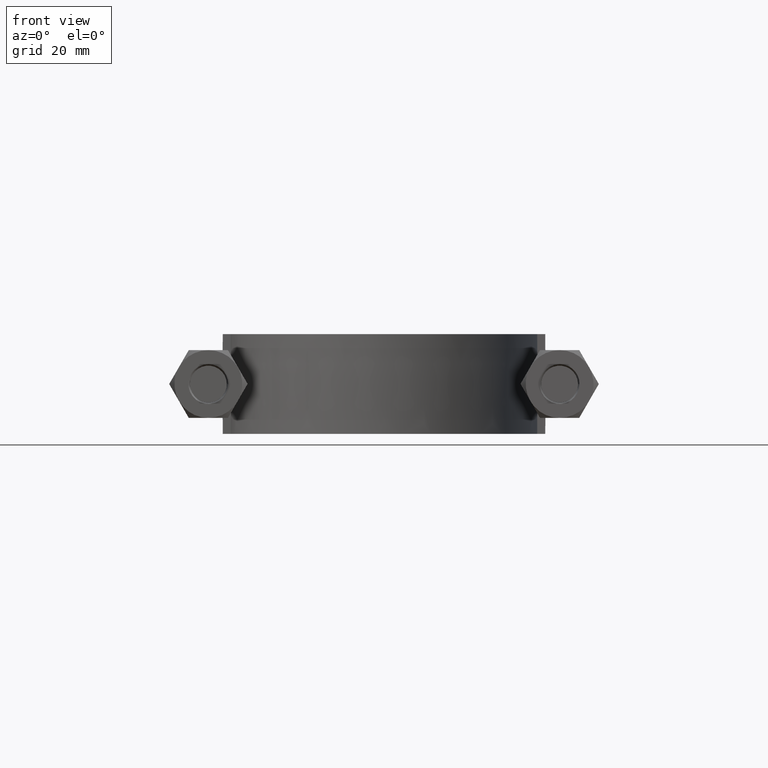
[diagram: clean part render]
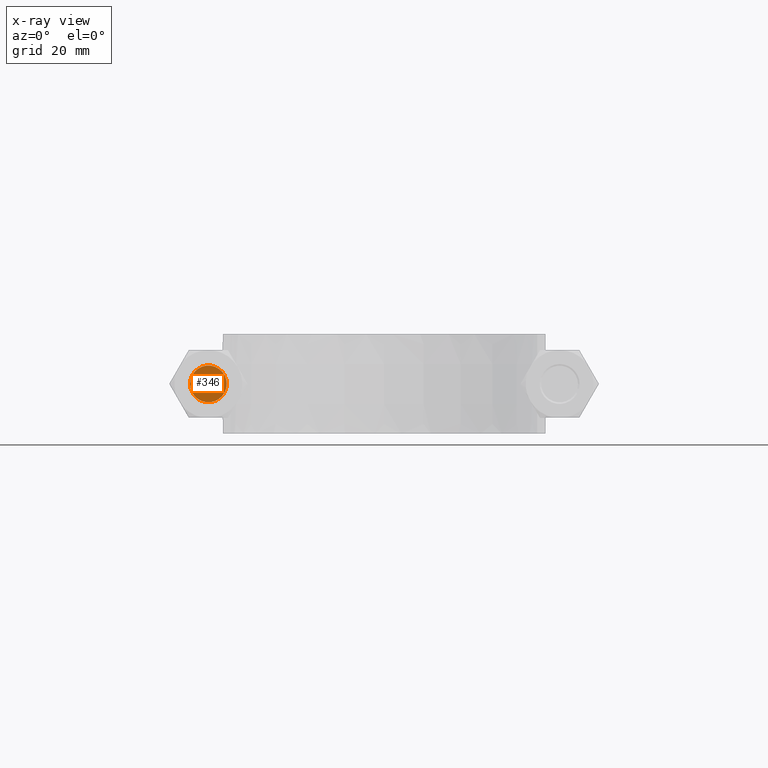
[diagram: x-ray — body ghosted, one internal face saturated and labeled with its STEP entity id]
A machine part, front view, then the same camera in x-ray: the body is ghosted and one INTERNAL B-rep face — a face not visible from any outside direction — is saturated and labeled: STEP entity #346.
In plain terms, the highlighted planar face has unit normal (-0, -1, -0).
Its self-contained STEP definition (entity closure, byte-faithful):
#346 = ADVANCED_FACE( '', ( #464 ), #465, .F. );
#464 = FACE_OUTER_BOUND( '', #1463, .T. );
#465 = PLANE( '', #1464 );
#1463 = EDGE_LOOP( '', ( #1761 ) );
#1464 = AXIS2_PLACEMENT_3D( '', #1762, #1763, #1764 );
#1761 = ORIENTED_EDGE( '', *, *, #2157, .F. );
#1762 = CARTESIAN_POINT( '', ( -44.0000000000000, 55.0000000000000, 3.42889779070266E-015 ) );
#1763 = DIRECTION( '', ( -2.44921270764476E-016, -1.00000000000000, -6.12303176911189E-017 ) );
#1764 = DIRECTION( '', ( -1.00000000000000, 2.44921270764476E-016, 3.01888774004914E-048 ) );
#2157 = EDGE_CURVE( '', #2337, #2337, #2338, .T. );
#2337 = VERTEX_POINT( '', #2846 );
#2338 = CIRCLE( '', #2847, 4.60000000000000 );
#2846 = CARTESIAN_POINT( '', ( -39.4000000000000, 55.0000000000000, 3.42889779070266E-015 ) );
#2847 = AXIS2_PLACEMENT_3D( '', #3238, #3239, #3240 );
#3238 = CARTESIAN_POINT( '', ( -44.0000000000000, 55.0000000000000, 3.42889779070266E-015 ) );
#3239 = DIRECTION( '', ( -2.44921270764476E-016, -1.00000000000000, -6.12303176911189E-017 ) );
#3240 = DIRECTION( '', ( 1.00000000000000, -2.44921270764476E-016, -1.01150562509412E-032 ) );